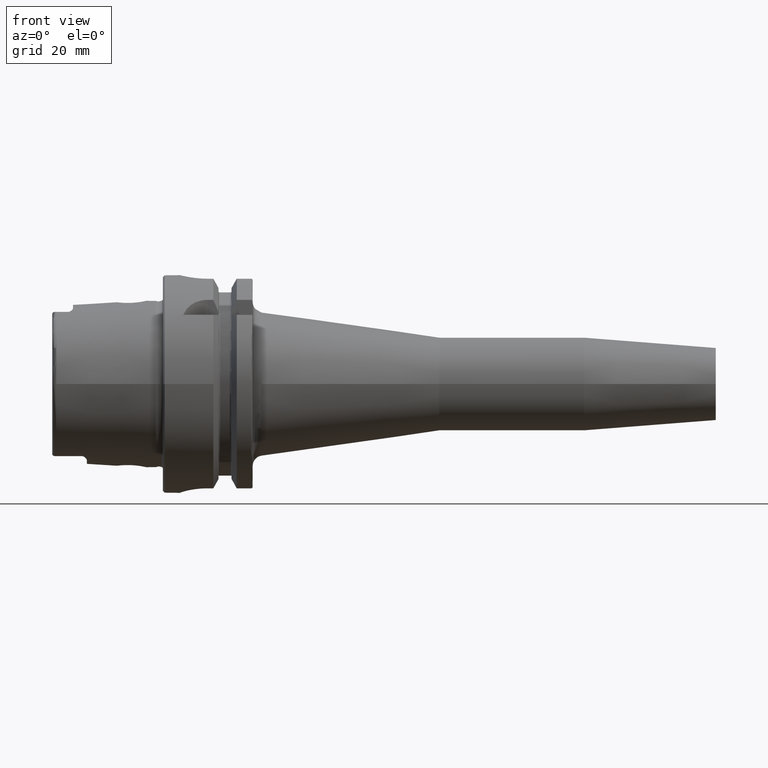
[diagram: clean part render]
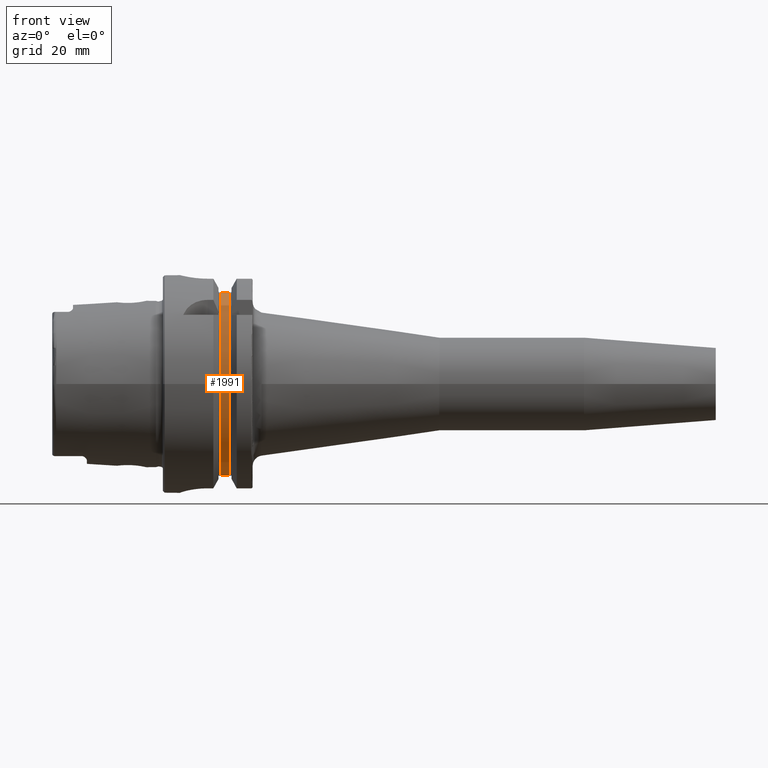
[diagram: same view with one face highlighted and labeled with its STEP entity id]
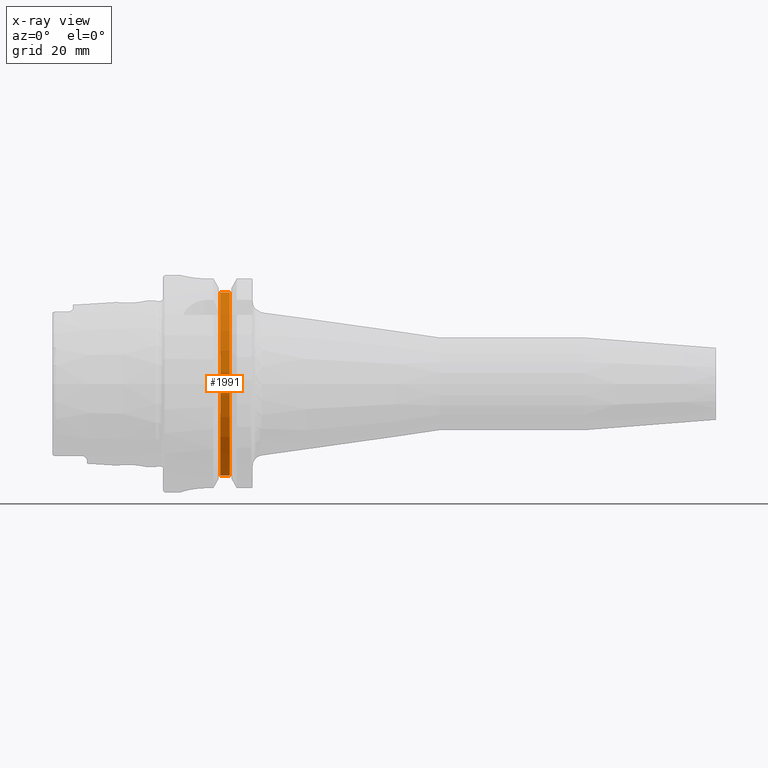
[diagram: x-ray of the same camera — body ghosted, the highlighted face saturated]
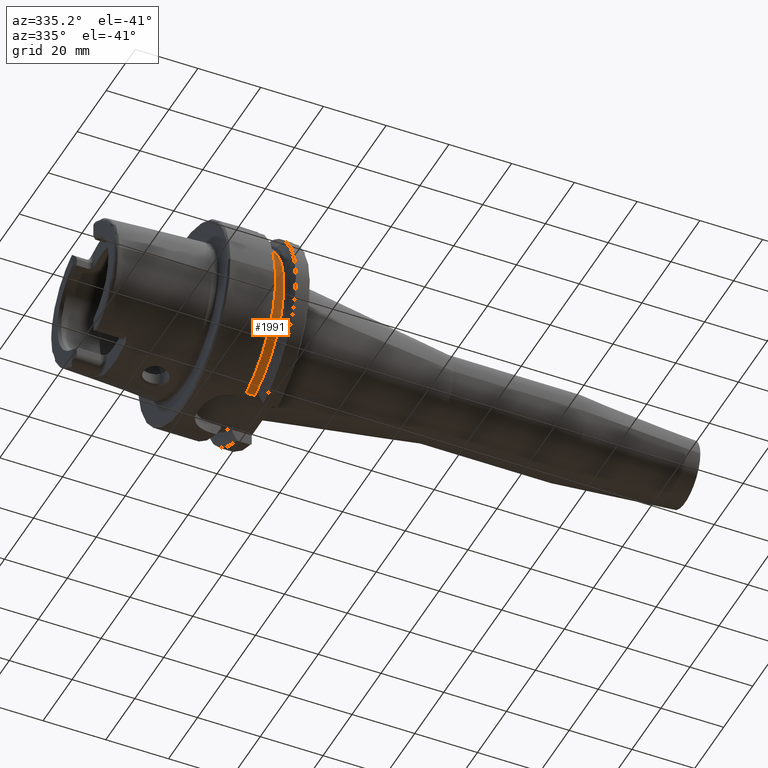
[diagram: same view with one face highlighted and labeled with its STEP entity id]
A machine part, front view. The second image highlights one B-rep face of the part: STEP entity #1991.
The next image is the same camera in x-ray: the body ghosted, the highlighted face saturated — about 0% of this face is hidden behind the body in this view.
A second angle (auxiliary view) of the same face is appended — the face is thin or edge-on in the first view.
In plain terms, the highlighted cylindrical surface (partial cylindrical patch) has radius 27.5 mm, axis along (1, 0, 0).
Its self-contained STEP definition (entity closure, byte-faithful):
#117=CYLINDRICAL_SURFACE('',#2207,27.5);
#254=LINE('',#3965,#361);
#265=LINE('',#4097,#372);
#361=VECTOR('',#2613,10.);
#372=VECTOR('',#2678,10.);
#477=FACE_OUTER_BOUND('',#599,.T.);
#599=EDGE_LOOP('',(#1632,#1633,#1634,#1635));
#722=CIRCLE('',#2196,27.5);
#728=CIRCLE('',#2208,27.5);
#913=VERTEX_POINT('',#3910);
#921=VERTEX_POINT('',#3954);
#934=VERTEX_POINT('',#4050);
#939=VERTEX_POINT('',#4095);
#1167=EDGE_CURVE('',#913,#921,#254,.T.);
#1189=EDGE_CURVE('',#934,#913,#722,.T.);
#1200=EDGE_CURVE('',#939,#921,#728,.T.);
#1201=EDGE_CURVE('',#939,#934,#265,.T.);
#1632=ORIENTED_EDGE('',*,*,#1167,.T.);
#1633=ORIENTED_EDGE('',*,*,#1200,.F.);
#1634=ORIENTED_EDGE('',*,*,#1201,.T.);
#1635=ORIENTED_EDGE('',*,*,#1189,.T.);
#1991=ADVANCED_FACE('',(#477),#117,.T.);
#2196=AXIS2_PLACEMENT_3D('',#4051,#2650,#2651);
#2207=AXIS2_PLACEMENT_3D('',#4094,#2674,#2675);
#2208=AXIS2_PLACEMENT_3D('',#4096,#2676,#2677);
#2613=DIRECTION('',(1.,0.,0.));
#2650=DIRECTION('center_axis',(1.,0.,0.));
#2651=DIRECTION('ref_axis',(0.,0.,-1.));
#2674=DIRECTION('center_axis',(1.,0.,0.));
#2675=DIRECTION('ref_axis',(0.,-1.,-1.22464679914735E-16));
#2676=DIRECTION('center_axis',(1.,0.,0.));
#2677=DIRECTION('ref_axis',(0.,0.,-1.));
#2678=DIRECTION('',(-1.,0.,0.));
#3910=CARTESIAN_POINT('',(16.625,-7.34846922834952,-26.5));
#3954=CARTESIAN_POINT('',(19.375,-7.34846922834952,-26.5));
#3965=CARTESIAN_POINT('',(18.,-7.34846922834952,-26.5));
#4050=CARTESIAN_POINT('',(16.625,-7.34846922834952,26.5));
#4051=CARTESIAN_POINT('Origin',(16.625,0.,0.));
#4094=CARTESIAN_POINT('Origin',(18.,0.,0.));
#4095=CARTESIAN_POINT('',(19.375,-7.34846922834952,26.5));
#4096=CARTESIAN_POINT('Origin',(19.375,0.,0.));
#4097=CARTESIAN_POINT('',(18.,-7.34846922834952,26.5));